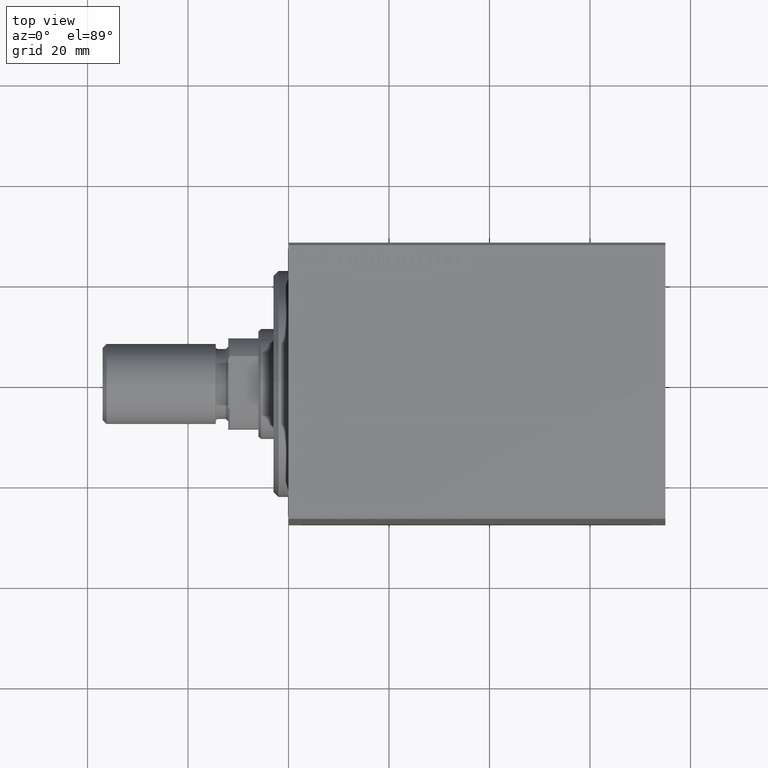
[diagram: clean part render]
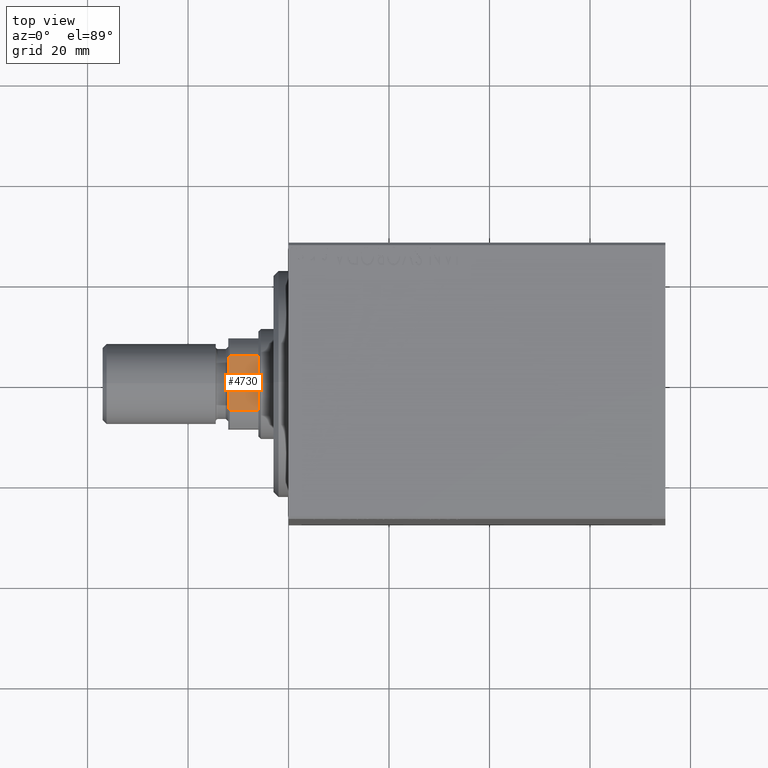
[diagram: same view with one face highlighted and labeled with its STEP entity id]
A machine part, top view. The second image highlights one B-rep face of the part: STEP entity #4730.
In plain terms, the highlighted planar face has unit normal (-0, -0, -1).
Its self-contained STEP definition (entity closure, byte-faithful):
#493 = CARTESIAN_POINT ( 'NONE',  ( 8.999999999999998224, 4.800000000000010481, 77.00000000000001421 ) ) ;
#930 = EDGE_CURVE ( 'NONE', #5178, #32359, #8796, .T. ) ;
#974 = VECTOR ( 'NONE', #34006, 1000.000000000000000 ) ;
#1784 = AXIS2_PLACEMENT_3D ( 'NONE', #15579, #42850, #25710 ) ;
#4730 = ADVANCED_FACE ( 'NONE', ( #5237 ), #18963, .F. ) ;
#5178 = VERTEX_POINT ( 'NONE', #8446 ) ;
#5237 = FACE_OUTER_BOUND ( 'NONE', #7883, .T. ) ;
#7883 = EDGE_LOOP ( 'NONE', ( #36722, #43354, #10809, #35075, #20138, #28099 ) ) ;
#8446 = CARTESIAN_POINT ( 'NONE',  ( 8.999999999999998224, 5.408326913195988794, 71.00000000000002842 ) ) ;
#8796 = LINE ( 'NONE', #22532, #974 ) ;
#10579 = CARTESIAN_POINT ( 'NONE',  ( 8.999999999999996447, -5.408326913195990571, 71.00000000000002842 ) ) ;
#10809 = ORIENTED_EDGE ( 'NONE', *, *, #24393, .F. ) ;
#11402 = B_SPLINE_CURVE_WITH_KNOTS ( 'NONE', 3,
 ( #38820, #35650, #18550, #15377 ),
 .UNSPECIFIED., .F., .F.,
 ( 4, 4 ),
 ( 0.000000000000000000, 0.0006782784334759217560 ),
 .UNSPECIFIED. ) ;
#12186 = LINE ( 'NONE', #25911, #23022 ) ;
#14982 = EDGE_CURVE ( 'NONE', #36802, #5178, #25912, .T. ) ;
#15377 = CARTESIAN_POINT ( 'NONE',  ( 8.999999999999996447, -5.408326913195990571, 76.70000000000001705 ) ) ;
#15579 = CARTESIAN_POINT ( 'NONE',  ( 8.999999999999998224, 8.999999999999998224, 77.00000000000001421 ) ) ;
#16459 = CARTESIAN_POINT ( 'NONE',  ( 8.999999999999998224, 5.408326913195988794, 76.70000000000001705 ) ) ;
#16804 = CARTESIAN_POINT ( 'NONE',  ( 8.999999999999998224, 5.004607318780313285, 76.90371420292693472 ) ) ;
#17325 = EDGE_CURVE ( 'NONE', #32359, #42263, #35621, .T. ) ;
#18550 = CARTESIAN_POINT ( 'NONE',  ( 9.000000000000001776, -5.207299490555479693, 76.80354495430069051 ) ) ;
#18963 = PLANE ( 'NONE',  #1784 ) ;
#19169 = CARTESIAN_POINT ( 'NONE',  ( 8.999999999999998224, 8.999999999999998224, 71.00000000000001421 ) ) ;
#20138 = ORIENTED_EDGE ( 'NONE', *, *, #42747, .F. ) ;
#20199 = CARTESIAN_POINT ( 'NONE',  ( 8.999999999999998224, 5.408326913195988794, 76.70000000000001705 ) ) ;
#22532 = CARTESIAN_POINT ( 'NONE',  ( 8.999999999999998224, 5.408326913195988794, -0.001000000000001000089 ) ) ;
#22680 = LINE ( 'NONE', #28987, #31421 ) ;
#23022 = VECTOR ( 'NONE', #39671, 1000.000000000000000 ) ;
#24393 = EDGE_CURVE ( 'NONE', #27452, #42263, #12186, .T. ) ;
#25610 = VERTEX_POINT ( 'NONE', #27397 ) ;
#25710 = DIRECTION ( 'NONE',  ( 1.927470528863119049E-16, -1.000000000000000000, 0.000000000000000000 ) ) ;
#25911 = CARTESIAN_POINT ( 'NONE',  ( 8.999999999999998224, 8.999999999999998224, 77.00000000000001421 ) ) ;
#25912 = LINE ( 'NONE', #19169, #35095 ) ;
#26136 = DIRECTION ( 'NONE',  ( -1.927470528863119049E-16, 1.000000000000000000, -0.000000000000000000 ) ) ;
#27397 = CARTESIAN_POINT ( 'NONE',  ( 8.999999999999996447, -5.408326913195990571, 76.70000000000001705 ) ) ;
#27452 = VERTEX_POINT ( 'NONE', #33998 ) ;
#28099 = ORIENTED_EDGE ( 'NONE', *, *, #14982, .T. ) ;
#28236 = EDGE_CURVE ( 'NONE', #27452, #25610, #11402, .T. ) ;
#28987 = CARTESIAN_POINT ( 'NONE',  ( 8.999999999999996447, -5.408326913195990571, -0.001000000000001000089 ) ) ;
#31421 = VECTOR ( 'NONE', #42733, 1000.000000000000000 ) ;
#32359 = VERTEX_POINT ( 'NONE', #16459 ) ;
#33711 = CARTESIAN_POINT ( 'NONE',  ( 8.999999999999998224, 4.800000000000010481, 77.00000000000001421 ) ) ;
#33998 = CARTESIAN_POINT ( 'NONE',  ( 9.000000000000001776, -4.800000000000007816, 77.00000000000001421 ) ) ;
#34006 = DIRECTION ( 'NONE',  ( -0.000000000000000000, -0.000000000000000000, 1.000000000000000000 ) ) ;
#35075 = ORIENTED_EDGE ( 'NONE', *, *, #28236, .T. ) ;
#35095 = VECTOR ( 'NONE', #26136, 1000.000000000000000 ) ;
#35621 = B_SPLINE_CURVE_WITH_KNOTS ( 'NONE', 3,
 ( #20199, #37089, #16804, #33711 ),
 .UNSPECIFIED., .F., .F.,
 ( 4, 4 ),
 ( 0.000000000000000000, 0.0006782784334759163350 ),
 .UNSPECIFIED. ) ;
#35650 = CARTESIAN_POINT ( 'NONE',  ( 9.000000000000001776, -5.004607318780307068, 76.90371420292693472 ) ) ;
#36722 = ORIENTED_EDGE ( 'NONE', *, *, #930, .T. ) ;
#36802 = VERTEX_POINT ( 'NONE', #10579 ) ;
#37089 = CARTESIAN_POINT ( 'NONE',  ( 8.999999999999998224, 5.207299490555477917, 76.80354495430069051 ) ) ;
#38820 = CARTESIAN_POINT ( 'NONE',  ( 9.000000000000001776, -4.800000000000007816, 77.00000000000001421 ) ) ;
#39671 = DIRECTION ( 'NONE',  ( -1.927470528863119049E-16, 1.000000000000000000, -0.000000000000000000 ) ) ;
#42263 = VERTEX_POINT ( 'NONE', #493 ) ;
#42733 = DIRECTION ( 'NONE',  ( -0.000000000000000000, -0.000000000000000000, 1.000000000000000000 ) ) ;
#42747 = EDGE_CURVE ( 'NONE', #36802, #25610, #22680, .T. ) ;
#42850 = DIRECTION ( 'NONE',  ( -1.000000000000000000, -1.927470528863119049E-16, 0.000000000000000000 ) ) ;
#43354 = ORIENTED_EDGE ( 'NONE', *, *, #17325, .T. ) ;